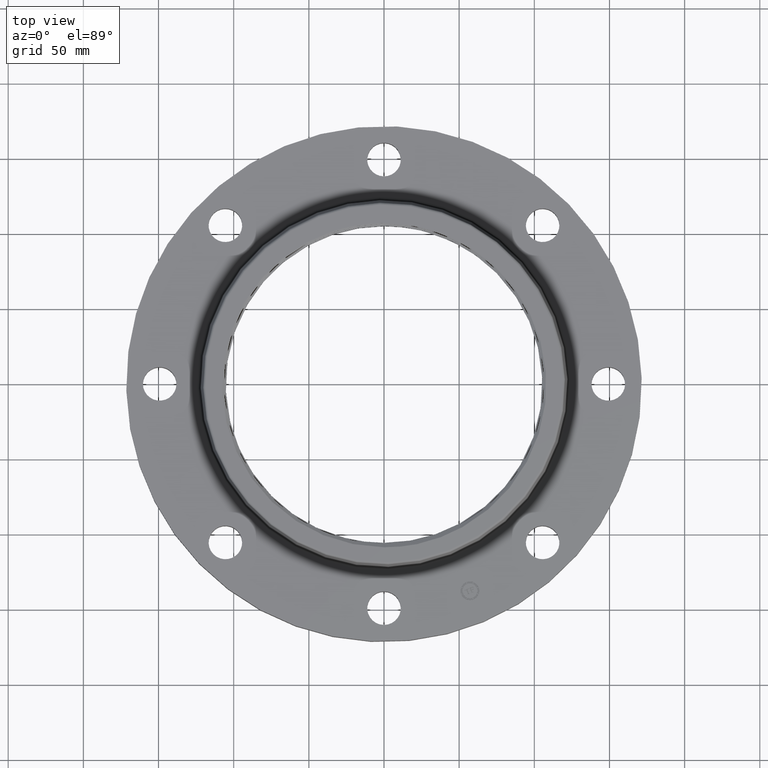
[diagram: clean part render]
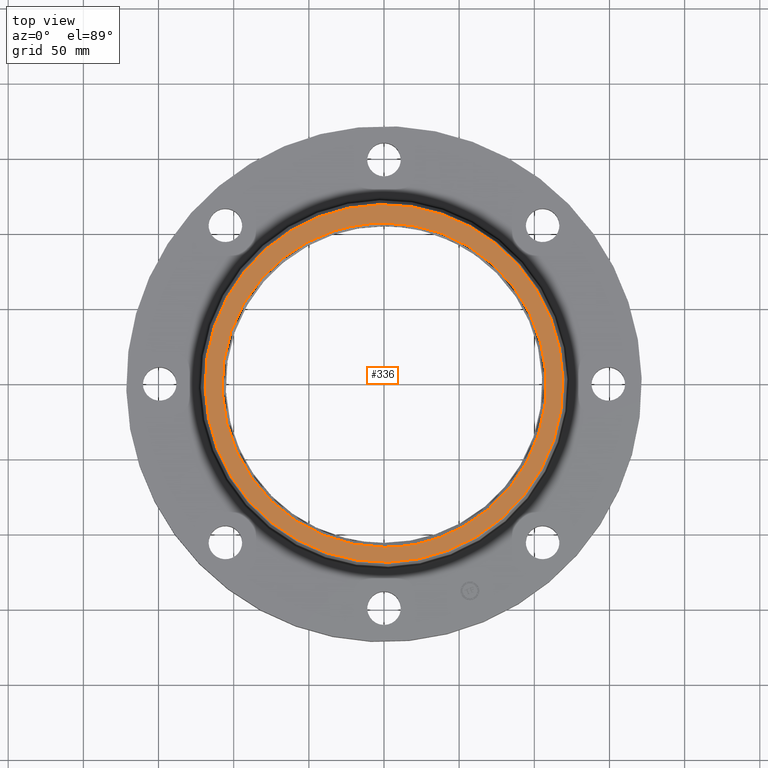
[diagram: same view with one face highlighted and labeled with its STEP entity id]
A machine part, top view. The second image highlights one B-rep face of the part: STEP entity #336.
In plain terms, the highlighted planar face has unit normal (0, 0, -1).
Its self-contained STEP definition (entity closure, byte-faithful):
#189=AXIS2_PLACEMENT_3D('Plane Axis2P3D',#186,#187,#188) ;
#193=AXIS2_PLACEMENT_3D('Circle Axis2P3D',#191,#192,$) ;
#202=AXIS2_PLACEMENT_3D('Circle Axis2P3D',#200,#201,$) ;
#211=AXIS2_PLACEMENT_3D('Circle Axis2P3D',#209,#210,$) ;
#186=CARTESIAN_POINT('Axis2P3D Location',(0.,4.6835680243,1.69000000001)) ;
#191=CARTESIAN_POINT('Axis2P3D Location',(0.,0.,1.69000000001)) ;
#195=CARTESIAN_POINT('Vertex',(2.24542212264,4.11021762555,1.69000000001)) ;
#197=CARTESIAN_POINT('Vertex',(-2.24542212264,-4.11021762555,1.69000000001)) ;
#200=CARTESIAN_POINT('Axis2P3D Location',(0.,0.,1.69000000001)) ;
#209=CARTESIAN_POINT('Axis2P3D Location',(1.1189649382E-015,5.59482469102E-016,1.69000000001)) ;
#213=CARTESIAN_POINT('Vertex',(-0.38392800982,4.18181420238,1.68999993488)) ;
#215=CARTESIAN_POINT('Vertex',(-0.0287845306161,4.19930258864,1.69000008784)) ;
#219=CARTESIAN_POINT('Control Point',(2.2401153548E-015,4.19963098304,1.69000000001)) ;
#220=CARTESIAN_POINT('Control Point',(-0.0057571843045,4.19958500512,1.69000000001)) ;
#221=CARTESIAN_POINT('Control Point',(-0.011514249253,4.19952916136,1.69000000001)) ;
#222=CARTESIAN_POINT('Control Point',(-0.0172712001146,4.1994634517,1.69000000001)) ;
#223=CARTESIAN_POINT('Control Point',(-0.0230279586064,4.19938787714,1.69000000001)) ;
#224=CARTESIAN_POINT('Control Point',(-0.0287845300034,4.19930243781,1.69000000001)) ;
#225=CARTESIAN_POINT('Vertex',(2.23792987641E-015,4.19963098304,1.69000000001)) ;
#229=CARTESIAN_POINT('Control Point',(2.05588573869,-3.76327357874,1.69000000001)) ;
#230=CARTESIAN_POINT('Control Point',(2.31393381937,-3.6196694455,1.69000000001)) ;
#231=CARTESIAN_POINT('Control Point',(2.55953196207,-3.45389984888,1.69000000001)) ;
#232=CARTESIAN_POINT('Control Point',(2.7901171592,-3.26740489602,1.69000000001)) ;
#233=CARTESIAN_POINT('Control Point',(3.21671869509,-2.85669116849,1.69000000001)) ;
#234=CARTESIAN_POINT('Control Point',(3.56647268236,-2.37941706252,1.69000000001)) ;
#235=CARTESIAN_POINT('Control Point',(3.72025114097,-2.12630955878,1.69000000001)) ;
#236=CARTESIAN_POINT('Control Point',(3.98250345807,-1.59631373182,1.69000000001)) ;
#237=CARTESIAN_POINT('Control Point',(4.14996695077,-1.02956143354,1.69000000001)) ;
#238=CARTESIAN_POINT('Control Point',(4.20894336849,-0.739721245088,1.69000000001)) ;
#239=CARTESIAN_POINT('Control Point',(4.26091676354,-0.286299271365,1.69000000001)) ;
#240=CARTESIAN_POINT('Control Point',(4.25218608979,0.168603922082,1.69000000001)) ;
#241=CARTESIAN_POINT('Control Point',(4.24153147547,0.328852129242,1.69000000001)) ;
#242=CARTESIAN_POINT('Control Point',(4.18997629793,0.780790081426,1.69000000001)) ;
#243=CARTESIAN_POINT('Control Point',(4.07853542964,1.22267138903,1.69000000001)) ;
#244=CARTESIAN_POINT('Control Point',(3.98183308717,1.50150568512,1.69000000001)) ;
#245=CARTESIAN_POINT('Control Point',(3.74120047269,2.0394991322,1.69000000001)) ;
#246=CARTESIAN_POINT('Control Point',(3.41198268246,2.52762533358,1.69000000001)) ;
#247=CARTESIAN_POINT('Control Point',(3.22659982648,2.75675671723,1.69000000001)) ;
#248=CARTESIAN_POINT('Control Point',(2.81817054443,3.18040637674,1.69000000001)) ;
#249=CARTESIAN_POINT('Control Point',(2.34322407778,3.52720317831,1.69000000001)) ;
#250=CARTESIAN_POINT('Control Point',(2.09132106421,3.67947947758,1.69000000001)) ;
#251=CARTESIAN_POINT('Control Point',(1.56390117379,3.9386172244,1.69000000001)) ;
#252=CARTESIAN_POINT('Control Point',(0.999893723926,4.10287660823,1.69000000001)) ;
#253=CARTESIAN_POINT('Control Point',(0.711560941551,4.16020949184,1.69000000001)) ;
#254=CARTESIAN_POINT('Control Point',(0.394307140604,4.19496412807,1.69000000001)) ;
#255=CARTESIAN_POINT('Control Point',(0.0764885563107,4.19966136992,1.69000000001)) ;
#256=CARTESIAN_POINT('Control Point',(0.0509897480716,4.19984472348,1.69000000001)) ;
#257=CARTESIAN_POINT('Control Point',(0.0254937035256,4.19983458038,1.69000000001)) ;
#258=CARTESIAN_POINT('Control Point',(7.78030308596E-016,4.19963098304,1.69000000001)) ;
#259=CARTESIAN_POINT('Vertex',(2.05588573869,-3.76327357874,1.69000000001)) ;
#263=CARTESIAN_POINT('Control Point',(0.871450758743,-4.20887894871,1.69000000001)) ;
#264=CARTESIAN_POINT('Control Point',(1.11993054375,-4.15540583769,1.69000000001)) ;
#265=CARTESIAN_POINT('Control Point',(1.36438468408,-4.08358074934,1.69000000001)) ;
#266=CARTESIAN_POINT('Control Point',(1.60300841737,-3.99379897164,1.69000000001)) ;
#267=CARTESIAN_POINT('Control Point',(1.83404755958,-3.88672684866,1.69000000001)) ;
#268=CARTESIAN_POINT('Control Point',(2.05588573869,-3.76327357874,1.69000000001)) ;
#269=CARTESIAN_POINT('Vertex',(0.871450758743,-4.20887894871,1.69000000001)) ;
#273=CARTESIAN_POINT('Control Point',(-8.46465868527E-009,-4.29195407267,1.69000000001)) ;
#274=CARTESIAN_POINT('Control Point',(0.175320044612,-4.29319361538,1.69000000001)) ;
#275=CARTESIAN_POINT('Control Point',(0.350734119923,-4.28548092666,1.69000000001)) ;
#276=CARTESIAN_POINT('Control Point',(0.525631975058,-4.26880973323,1.69000000001)) ;
#277=CARTESIAN_POINT('Control Point',(0.699403091341,-4.24323663078,1.69000000001)) ;
#278=CARTESIAN_POINT('Control Point',(0.871450758743,-4.20887894871,1.69000000001)) ;
#279=CARTESIAN_POINT('Vertex',(-8.46465826566E-009,-4.29195407267,1.69000000001)) ;
#283=CARTESIAN_POINT('Control Point',(-8.4646656788E-009,-4.29195407267,1.69000000001)) ;
#284=CARTESIAN_POINT('Control Point',(-0.295464380134,-4.28986508911,1.69000000001)) ;
#285=CARTESIAN_POINT('Control Point',(-0.590661860597,-4.26235019608,1.69000000001)) ;
#286=CARTESIAN_POINT('Control Point',(-0.882623620885,-4.20944754699,1.69000000001)) ;
#287=CARTESIAN_POINT('Control Point',(-1.45439750748,-4.05393717072,1.69000000001)) ;
#288=CARTESIAN_POINT('Control Point',(-1.99063727038,-3.80316720939,1.69000000001)) ;
#289=CARTESIAN_POINT('Control Point',(-2.24722231817,-3.65494346429,1.69000000001)) ;
#290=CARTESIAN_POINT('Control Point',(-2.73214191234,-3.31585663293,1.69000000001)) ;
#291=CARTESIAN_POINT('Control Point',(-3.15156892114,-2.89904403982,1.69000000001)) ;
#292=CARTESIAN_POINT('Control Point',(-3.34271856151,-2.67304201479,1.69000000001)) ;
#293=CARTESIAN_POINT('Control Point',(-3.68391792079,-2.19055477729,1.69000000001)) ;
#294=CARTESIAN_POINT('Control Point',(-3.93726335172,-1.65689355697,1.69000000001)) ;
#295=CARTESIAN_POINT('Control Point',(-4.04047568828,-1.37985289749,1.69000000001)) ;
#296=CARTESIAN_POINT('Control Point',(-4.1549834541,-0.966025912474,1.69000000001)) ;
#297=CARTESIAN_POINT('Control Point',(-4.21657615785,-0.542455105951,1.69000000001)) ;
#298=CARTESIAN_POINT('Control Point',(-4.2306028689,-0.409449528491,1.69000000001)) ;
#299=CARTESIAN_POINT('Control Point',(-4.25519041175,-0.0359395913922,1.69000000001)) ;
#300=CARTESIAN_POINT('Control Point',(-4.23860725736,0.338517170035,1.69000000001)) ;
#301=CARTESIAN_POINT('Control Point',(-4.21089600307,0.578003045618,1.69000000001)) ;
#302=CARTESIAN_POINT('Control Point',(-4.11185744024,1.10391640399,1.69000000001)) ;
#303=CARTESIAN_POINT('Control Point',(-3.93164007214,1.60813220748,1.69000000001)) ;
#304=CARTESIAN_POINT('Control Point',(-3.80870986506,1.87608318236,1.69000000001)) ;
#305=CARTESIAN_POINT('Control Point',(-3.51776609046,2.38778440282,1.69000000001)) ;
#306=CARTESIAN_POINT('Control Point',(-3.14330388568,2.84151996857,1.69000000001)) ;
#307=CARTESIAN_POINT('Control Point',(-2.93686323716,3.05148729354,1.69000000001)) ;
#308=CARTESIAN_POINT('Control Point',(-2.63126774658,3.31249314681,1.69000000001)) ;
#309=CARTESIAN_POINT('Control Point',(-2.29816543304,3.5347615787,1.69000000001)) ;
#310=CARTESIAN_POINT('Control Point',(-2.20688642472,3.59154995398,1.69000000001)) ;
#311=CARTESIAN_POINT('Control Point',(-2.11386877974,3.64538522885,1.69000000001)) ;
#312=CARTESIAN_POINT('Control Point',(-2.01924207379,3.6961982699,1.69000000001)) ;
#313=CARTESIAN_POINT('Vertex',(-2.01924207379,3.6961982699,1.69000000001)) ;
#317=CARTESIAN_POINT('Control Point',(-2.01924207379,3.6961982699,1.69000000001)) ;
#318=CARTESIAN_POINT('Control Point',(-1.76141467898,3.83464749405,1.69000000001)) ;
#319=CARTESIAN_POINT('Control Point',(-1.49164191332,3.95066001413,1.69000000001)) ;
#320=CARTESIAN_POINT('Control Point',(-1.2125193001,4.04285138242,1.69000000001)) ;
#321=CARTESIAN_POINT('Control Point',(-0.876964840715,4.12208240308,1.69000000001)) ;
#322=CARTESIAN_POINT('Control Point',(-0.536457793635,4.16658155644,1.69000000001)) ;
#323=CARTESIAN_POINT('Control Point',(-0.485674817997,4.17243411206,1.69000000001)) ;
#324=CARTESIAN_POINT('Control Point',(-0.434832759757,4.17751126361,1.69000000001)) ;
#325=CARTESIAN_POINT('Control Point',(-0.383927988634,4.18181408381,1.69000000001)) ;
#187=DIRECTION('Axis2P3D Direction',(0.,0.,-0.0393700787402)) ;
#188=DIRECTION('Axis2P3D XDirection',(0.0393700787402,0.,0.)) ;
#192=DIRECTION('Axis2P3D Direction',(0.,0.,-0.0393700787402)) ;
#201=DIRECTION('Axis2P3D Direction',(0.,0.,-0.0393700787402)) ;
#210=DIRECTION('Axis2P3D Direction',(0.,0.,-0.0393700787402)) ;
#206=ORIENTED_EDGE('',*,*,#199,.F.) ;
#207=ORIENTED_EDGE('',*,*,#204,.F.) ;
#328=ORIENTED_EDGE('',*,*,#217,.T.) ;
#329=ORIENTED_EDGE('',*,*,#227,.F.) ;
#330=ORIENTED_EDGE('',*,*,#261,.F.) ;
#331=ORIENTED_EDGE('',*,*,#271,.F.) ;
#332=ORIENTED_EDGE('',*,*,#281,.F.) ;
#333=ORIENTED_EDGE('',*,*,#315,.T.) ;
#334=ORIENTED_EDGE('',*,*,#326,.T.) ;
#335=FACE_BOUND('',#327,.T.) ;
#336=ADVANCED_FACE('PartBody',(#208,#335),#190,.F.) ;
#218=B_SPLINE_CURVE_WITH_KNOTS('',5,(#219,#220,#221,#222,#223,#224),.UNSPECIFIED.,.F.,.U.,(6,6),(0.,1.04032046993),.UNSPECIFIED.) ;
#228=B_SPLINE_CURVE_WITH_KNOTS('',5,(#229,#230,#231,#232,#233,#234,#235,#236,#237,#238,#239,#240,#241,#242,#243,#244,#245,#246,#247,#248,#249,#250,#251,#252,#253,#254,#255,#256,#257,#258),.UNSPECIFIED.,.F.,.U.,(6,3,3,3,3,3,3,3,3,6),(0.,52.7965258335,105.604887672,158.4085143,187.207631929,240.024450877,292.875968281,345.727720296,398.548342974,403.155043095),.UNSPECIFIED.) ;
#262=B_SPLINE_CURVE_WITH_KNOTS('',5,(#263,#264,#265,#266,#267,#268),.UNSPECIFIED.,.F.,.U.,(6,6),(0.,45.3879955893),.UNSPECIFIED.) ;
#272=B_SPLINE_CURVE_WITH_KNOTS('',5,(#273,#274,#275,#276,#277,#278),.UNSPECIFIED.,.F.,.U.,(6,6),(0.,31.3299173214),.UNSPECIFIED.) ;
#282=B_SPLINE_CURVE_WITH_KNOTS('',5,(#283,#284,#285,#286,#287,#288,#289,#290,#291,#292,#293,#294,#295,#296,#297,#298,#299,#300,#301,#302,#303,#304,#305,#306,#307,#308,#309,#310,#311,#312),.UNSPECIFIED.,.F.,.U.,(6,3,3,3,3,3,3,3,3,6),(0.,52.799860446,105.630241537,158.474779057,211.290406832,235.287161293,278.476050488,331.27187735,384.064251877,403.435325216),.UNSPECIFIED.) ;
#316=B_SPLINE_CURVE_WITH_KNOTS('',5,(#317,#318,#319,#320,#321,#322,#323,#324,#325),.UNSPECIFIED.,.F.,.U.,(6,3,6),(0.,52.7799559918,62.0069730122),.UNSPECIFIED.) ;
#194=CIRCLE('generated circle',#193,4.6835680243) ;
#203=CIRCLE('generated circle',#202,4.6835680243) ;
#212=CIRCLE('generated circle',#211,4.19940123792) ;
#199=EDGE_CURVE('',#196,#198,#194,.T.) ;
#204=EDGE_CURVE('',#198,#196,#203,.T.) ;
#217=EDGE_CURVE('',#214,#216,#212,.T.) ;
#227=EDGE_CURVE('',#226,#216,#218,.T.) ;
#261=EDGE_CURVE('',#260,#226,#228,.T.) ;
#271=EDGE_CURVE('',#270,#260,#262,.T.) ;
#281=EDGE_CURVE('',#280,#270,#272,.T.) ;
#315=EDGE_CURVE('',#280,#314,#282,.T.) ;
#326=EDGE_CURVE('',#314,#214,#316,.T.) ;
#205=EDGE_LOOP('',(#206,#207)) ;
#327=EDGE_LOOP('',(#328,#329,#330,#331,#332,#333,#334)) ;
#208=FACE_OUTER_BOUND('',#205,.T.) ;
#190=PLANE('',#189) ;
#196=VERTEX_POINT('',#195) ;
#198=VERTEX_POINT('',#197) ;
#214=VERTEX_POINT('',#213) ;
#216=VERTEX_POINT('',#215) ;
#226=VERTEX_POINT('',#225) ;
#260=VERTEX_POINT('',#259) ;
#270=VERTEX_POINT('',#269) ;
#280=VERTEX_POINT('',#279) ;
#314=VERTEX_POINT('',#313) ;